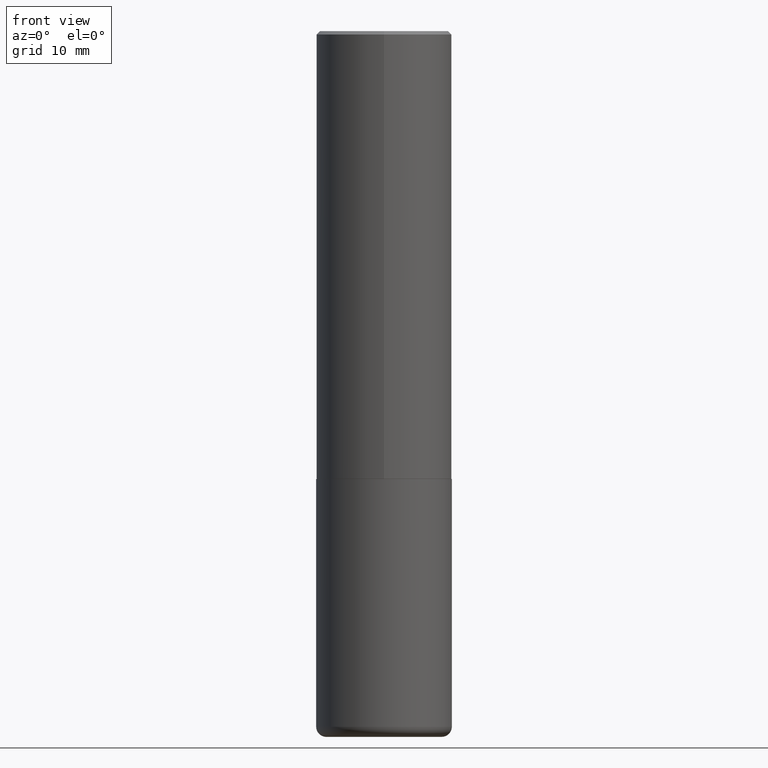
[diagram: clean part render]
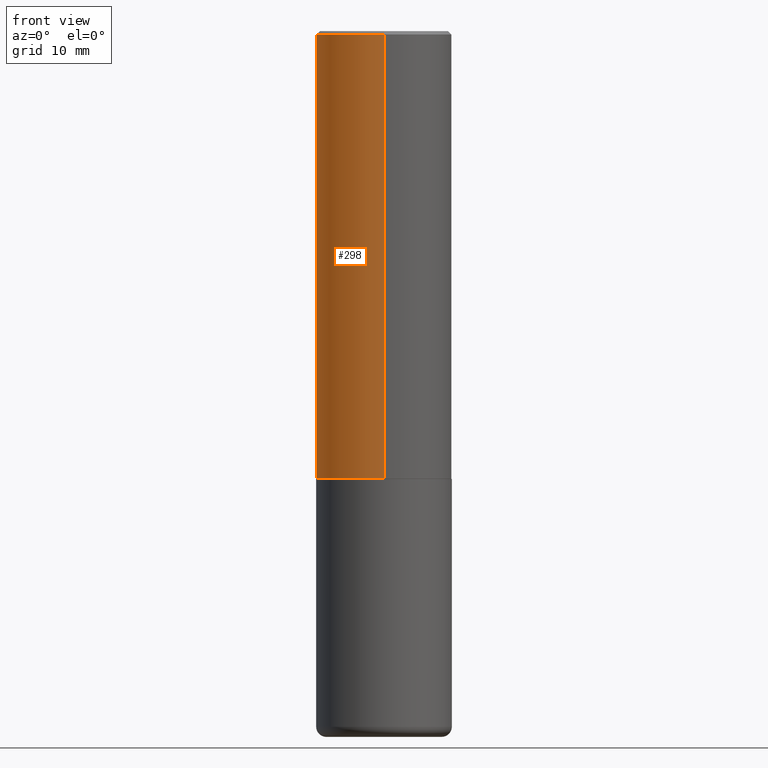
[diagram: same view with one face highlighted and labeled with its STEP entity id]
A machine part, front view. The second image highlights one B-rep face of the part: STEP entity #298.
In plain terms, the highlighted cylindrical surface (partial cylindrical patch) has radius 10 mm, axis along (-0, 0, 1).
Its self-contained STEP definition (entity closure, byte-faithful):
#11 = ORIENTED_EDGE ( 'NONE', *, *, #137, .T. ) ;
#16 = CIRCLE ( 'NONE', #196, 0.3937000000000002720 ) ;
#21 = CYLINDRICAL_SURFACE ( 'NONE', #243, 0.3937000000000001054 ) ;
#25 = CARTESIAN_POINT ( 'NONE',  ( 0.000000000000000000, 0.000000000000000000, 0.000000000000000000 ) ) ;
#28 = CARTESIAN_POINT ( 'NONE',  ( 2.797406750687514786E-15, 0.3937000000000001054, -1.375009401077903823E-15 ) ) ;
#34 = LINE ( 'NONE', #381, #255 ) ;
#48 = EDGE_LOOP ( 'NONE', ( #250, #339, #11, #141 ) ) ;
#52 = EDGE_CURVE ( 'NONE', #359, #178, #16, .T. ) ;
#72 = DIRECTION ( 'NONE',  ( -6.982962677686265922E-15, -1.000000000000000000, 4.163344669033672479E-15 ) ) ;
#97 = VECTOR ( 'NONE', #346, 39.37007874015748143 ) ;
#99 = EDGE_CURVE ( 'NONE', #359, #310, #319, .T. ) ;
#113 = CARTESIAN_POINT ( 'NONE',  ( 2.749192406205082822E-15, 0.3936999999999998834, -0.02000000000000146105 ) ) ;
#131 = DIRECTION ( 'NONE',  ( -2.444735926825112369E-29, 3.492530863799602802E-15, 1.000000000000000000 ) ) ;
#137 = EDGE_CURVE ( 'NONE', #178, #189, #34, .T. ) ;
#141 = ORIENTED_EDGE ( 'NONE', *, *, #160, .F. ) ;
#160 = EDGE_CURVE ( 'NONE', #310, #189, #303, .T. ) ;
#178 = VERTEX_POINT ( 'NONE', #414 ) ;
#183 = CARTESIAN_POINT ( 'NONE',  ( 2.797406750687547919E-15, 0.3936999999999912792, -2.597400000000002152 ) ) ;
#186 = AXIS2_PLACEMENT_3D ( 'NONE', #192, #131, #287 ) ;
#189 = VERTEX_POINT ( 'NONE', #348 ) ;
#192 = CARTESIAN_POINT ( 'NONE',  ( 4.889471853650246808E-31, -6.985061727599234890E-17, -0.02000000000000008715 ) ) ;
#196 = AXIS2_PLACEMENT_3D ( 'NONE', #307, #240, #72 ) ;
#240 = DIRECTION ( 'NONE',  ( -2.444735926825112369E-29, 3.492530863799602802E-15, 1.000000000000000000 ) ) ;
#243 = AXIS2_PLACEMENT_3D ( 'NONE', #25, #345, #275 ) ;
#250 = ORIENTED_EDGE ( 'NONE', *, *, #99, .F. ) ;
#255 = VECTOR ( 'NONE', #290, 39.37007874015748143 ) ;
#275 = DIRECTION ( 'NONE',  ( -6.982962677686265133E-15, -1.000000000000000000, 3.492530863799602407E-15 ) ) ;
#287 = DIRECTION ( 'NONE',  ( -6.982962677686265922E-15, -1.000000000000000000, 3.491137977679280212E-15 ) ) ;
#290 = DIRECTION ( 'NONE',  ( -2.444735926825112649E-29, 3.492530863799602802E-15, 1.000000000000000000 ) ) ;
#298 = ADVANCED_FACE ( 'NONE', ( #378 ), #21, .T. ) ;
#303 = CIRCLE ( 'NONE', #186, 0.3936999999999999389 ) ;
#307 = CARTESIAN_POINT ( 'NONE',  ( 6.349957096335548913E-29, -9.071499665633090901E-15, -2.597400000000000375 ) ) ;
#310 = VERTEX_POINT ( 'NONE', #113 ) ;
#319 = LINE ( 'NONE', #28, #97 ) ;
#339 = ORIENTED_EDGE ( 'NONE', *, *, #52, .T. ) ;
#345 = DIRECTION ( 'NONE',  ( -2.444735926825112369E-29, 3.492530863799602802E-15, 1.000000000000000000 ) ) ;
#346 = DIRECTION ( 'NONE',  ( -2.444735926825112649E-29, 3.492530863799602802E-15, 1.000000000000000000 ) ) ;
#348 = CARTESIAN_POINT ( 'NONE',  ( -2.700978061722650858E-15, -0.3937000000000000499, -0.01999999999999870978 ) ) ;
#359 = VERTEX_POINT ( 'NONE', #183 ) ;
#378 = FACE_OUTER_BOUND ( 'NONE', #48, .T. ) ;
#381 = CARTESIAN_POINT ( 'NONE',  ( -2.749192406205083217E-15, -0.3937000000000001054, 1.375009401077903823E-15 ) ) ;
#414 = CARTESIAN_POINT ( 'NONE',  ( -2.749192406205021291E-15, -0.3937000000000093758, -2.597399999999999043 ) ) ;